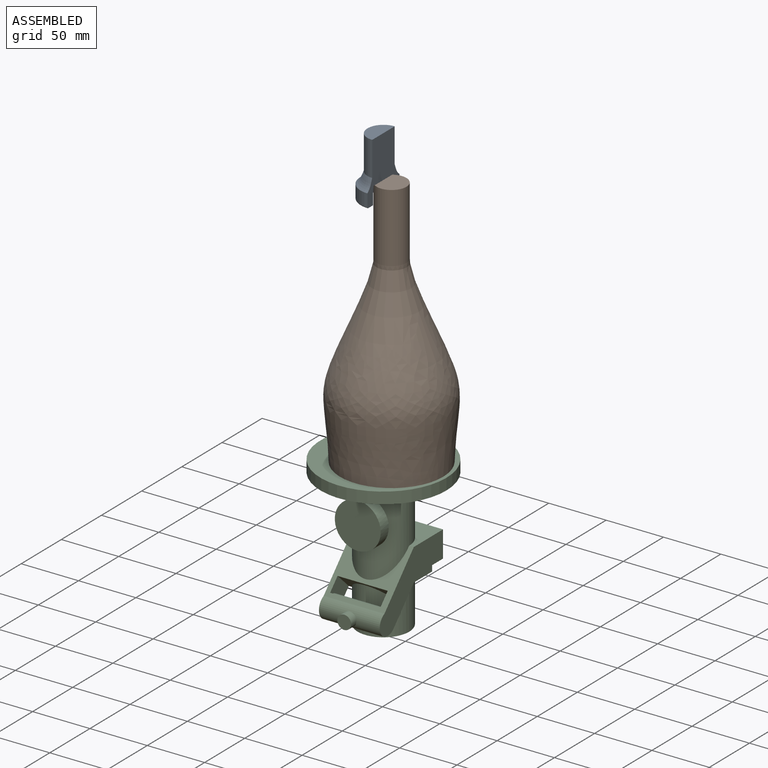
[diagram: assembled view]
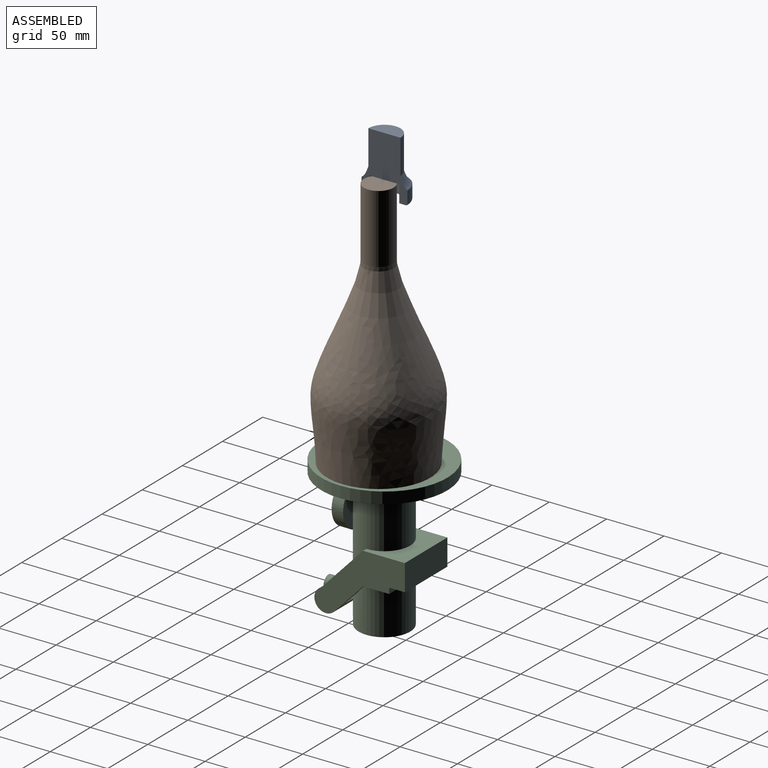
[diagram: assembled view, second angle]
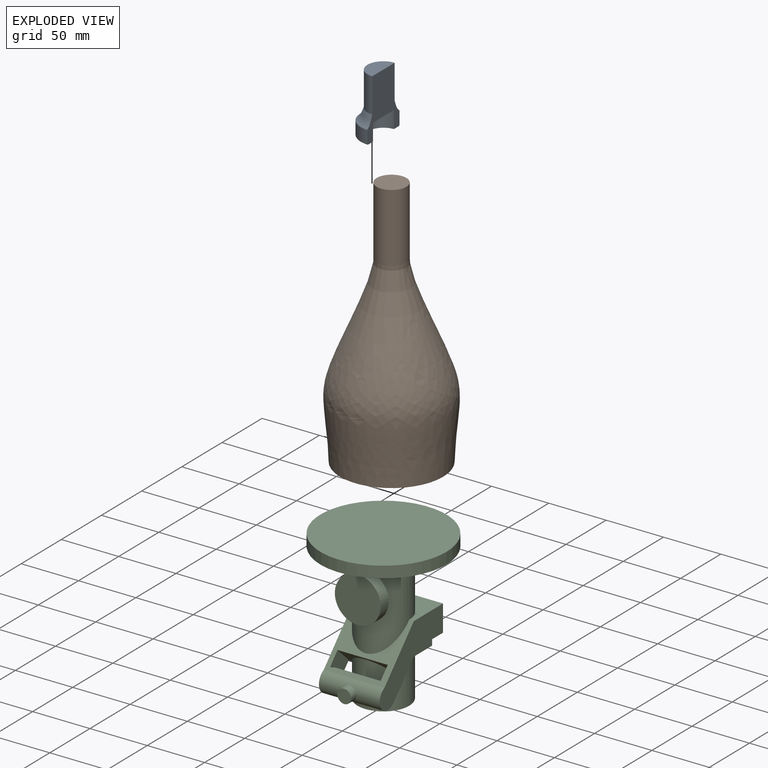
[diagram: exploded view]
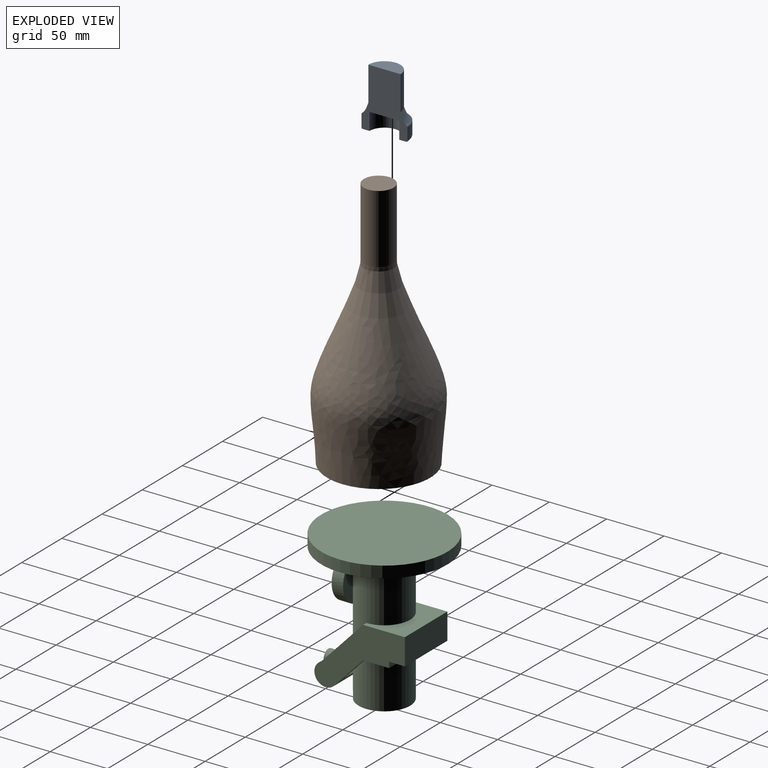
[diagram: exploded view, second angle]
ASSEMBLY  parts=3 mates=2
PART A: 9 faces, bbox 21.6x43.3x51.9 mm
  f0: plane 28x14mm, normal (0,0,1), area 307.9mm2, adj f1,f8
  f1: cylinder r=14mm len=30mm, axis (0,0,1), area 1319.5mm2, adj f0,f2,f8
  f2: revolved ~40x20mm, area 611.9mm2, adj f1,f3,f8
  f3: cylinder r=20mm len=40mm, axis (0,0,1), area 691.2mm2, adj f2,f6,f8
  f4: cylinder r=13mm len=26mm, axis (0,0,-1), area 612.6mm2, adj f5,f7,f8
  f5: plane 26x13mm, normal (0,0,-1), area 265.5mm2, adj f4,f8
  f6: torus R=19mm, axis (0,0,1), area 96.9mm2, adj f3,f7,f8
  f7: plane 38x19mm, normal (0,0,-1), area 301.6mm2, adj f4,f6,f8
  f8: plane 51.92x40mm, normal (1,0,0), area 1253.3mm2, adj f0,f1,f2,f3,f4,f5,f6,f7
PART B: 4 faces, bbox 97.6x97.6x220 mm
  f0: plane 90x90mm, normal (0,0,-1), area 6361.7mm2, adj f1
  f1: revolved ~160x97.58mm, area 37850.1mm2, adj f0,f2
  f2: cylinder r=13mm len=60mm, axis (0,0,1), area 4900.9mm2, adj f1,f3
  f3: plane 26x26mm, normal (0,0,1), area 530.9mm2, adj f2
PART C: 30 faces, bbox 110x110x130 mm
  f0: cylinder r=6mm len=12mm, axis (0,-1,0), area 252.7mm2, adj f1,f2,f3,f4
  f1: plane 10.25x2.88mm, normal (0,-1,0), area 20.8mm2, adj f0,f4
  f2: plane 10.25x2.88mm, normal (0,-1,0), area 20.8mm2, adj f0,f4
  f3: plane 12x12mm, normal (0,1,0), area 113.1mm2, adj f0
  f4: cylinder r=10mm len=53mm, axis (-1,0,0), area 1800.5mm2, adj f0,f1,f2,f10,f11,f17,f18
  f5: cylinder r=22.5mm len=76.06mm, axis (0,0,-1), area 8072.1mm2, adj f7,f10,f16,f26,f27,f28
  f6: cylinder r=55mm len=110mm, axis (0,0,-1), area 3455.8mm2, adj f7,f8
  f7: plane 110x110mm, normal (0,0,1), area 7912.9mm2, adj f5,f6
  f8: plane 110x110mm, normal (0,0,-1), area 9503.3mm2, adj f6
  f9: plane 43.77x13.98mm, normal (0,-0.69,-0.73), area 207.3mm2, adj f10,f11,f19,f20,f22,f23,f25
  f10: plane 53x38.68mm, normal (0,0.73,-0.69), area 1078.5mm2, adj f4,f5,f9,f16,f17,f18,f19,f20
  f11: plane 53x26.68mm, normal (0,-0.73,0.69), area 625.7mm2, adj f4,f9,f12,f17,f18,f19,f20,f21
  f12: plane 53x22.72mm, normal (0,0,1), area 408.7mm2, adj f11,f13,f17,f18,f25
  f13: plane 53x5mm, normal (0,-1,0), area 265mm2, adj f12,f14,f17,f18
  f14: plane 53x13.66mm, normal (0,0,1), area 723.8mm2, adj f13,f15,f17,f18
  f15: plane 53x23mm, normal (0,-1,0), area 1219mm2, adj f14,f16,f17,f18
  f16: plane 53x36.37mm, normal (0,0,-1), area 1132.5mm2, adj f5,f10,f15,f17,f18
  f17: plane 78.87x57.81mm, normal (1,0,0), area 2011.4mm2, adj f4,f10,f11,f12,f13,f14,f15,f16
  f18: plane 78.87x57.81mm, normal (-1,0,0), area 2011.4mm2, adj f4,f10,f11,f12,f13,f14,f15,f16
  f19: plane 23.18x22.95mm, normal (1,0,0), area 257.6mm2, adj f9,f10,f11,f21
  f20: plane 23.18x22.95mm, normal (-1,0,0), area 233.1mm2, adj f9,f10,f11,f21,f23
  f21: plane 43.77x13.98mm, normal (0,0.69,0.73), area 399.6mm2, adj f10,f11,f19,f20,f25
  f22: plane 9.84x9.31mm, normal (-1,0,0), area 24.6mm2, adj f9,f23
  f23: cylinder r=10mm len=43.72mm, axis (-1,0,0), area 650.4mm2, adj f9,f20,f22
  f24: plane 45x45mm, normal (0,0,1), area 1590.4mm2, adj f25
  f25: cylinder r=22.5mm len=45mm, axis (0,0,-1), area 5214.1mm2, adj f9,f11,f12,f21,f24
  f26: plane 38.87x15.28mm, normal (0,-1,0), area 441.4mm2, adj f5,f28
  f27: plane 38.87x15.28mm, normal (0,-1,0), area 441.4mm2, adj f5,f28
  f28: cylinder r=20mm len=40mm, axis (0,-1,0), area 1250.3mm2, adj f5,f26,f27,f29
  f29: plane 40x40mm, normal (0,1,0), area 1256.6mm2, adj f28
PLACE A rot(axis=(-1,0,0),0deg) t=(0,1.32,335)mm
PLACE B rot(axis=(-1,0,0),0deg) t=(7.1,1.32,130)mm
PLACE C rot(axis=(1,0,0),180deg) t=(0,1.32,130)mm
MATE planar A.f4 <-> B.f2  axis (0,0,-1) through (0,1.32,350)mm
MATE planar B.f2 <-> C.f6  axis (0,0,-1) through (7.1,1.32,130)mm
